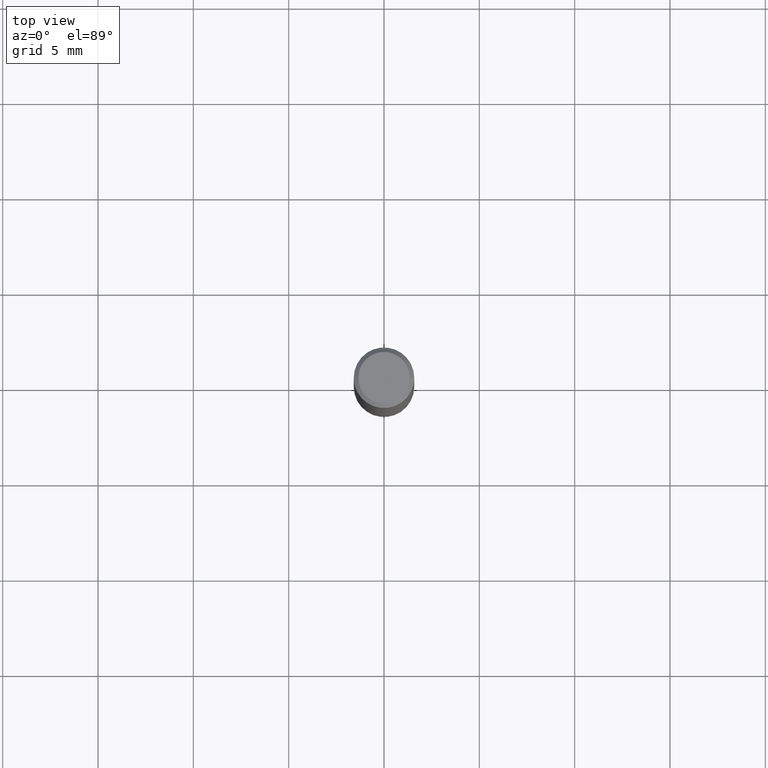
[diagram: clean part render]
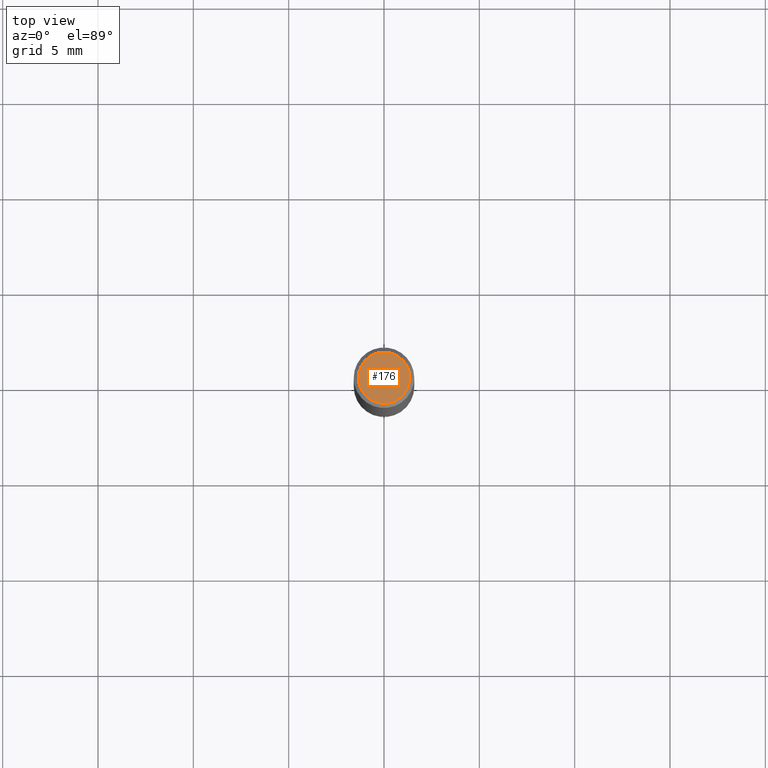
[diagram: same view with one face highlighted and labeled with its STEP entity id]
A machine part, top view. The second image highlights one B-rep face of the part: STEP entity #176.
In plain terms, the highlighted planar face has unit normal (0, -0, -1).
Its self-contained STEP definition (entity closure, byte-faithful):
#10 = ORIENTED_EDGE ( 'NONE', *, *, #518, .T. ) ;
#19 = VERTEX_POINT ( 'NONE', #86 ) ;
#37 = DIRECTION ( 'NONE',  ( -2.445468806185136597E-29, 3.491481338843145583E-15, 1.000000000000000000 ) ) ;
#47 = EDGE_CURVE ( 'NONE', #19, #323, #570, .T. ) ;
#86 = CARTESIAN_POINT ( 'NONE',  ( -0.05312499999999999861, 3.873362110279099094E-16, -5.787680772773044021E-18 ) ) ;
#135 = AXIS2_PLACEMENT_3D ( 'NONE', #579, #37, #494 ) ;
#172 = AXIS2_PLACEMENT_3D ( 'NONE', #543, #227, #505 ) ;
#176 = ADVANCED_FACE ( 'NONE', ( #549 ), #281, .F. ) ;
#227 = DIRECTION ( 'NONE',  ( 2.438088387897960049E-29, -3.491481338843145188E-15, -1.000000000000000000 ) ) ;
#275 = CARTESIAN_POINT ( 'NONE',  ( 0.05312499999999999861, -4.129888592719939842E-16, -5.787680772767651417E-18 ) ) ;
#281 = PLANE ( 'NONE',  #172 ) ;
#323 = VERTEX_POINT ( 'NONE', #275 ) ;
#327 = DIRECTION ( 'NONE',  ( 1.000000000000000000, -6.982962677686266711E-15, 4.875930095424100059E-29 ) ) ;
#343 = ORIENTED_EDGE ( 'NONE', *, *, #47, .T. ) ;
#381 = CARTESIAN_POINT ( 'NONE',  ( 1.415359278996747967E-46, -2.020757941330909984E-32, -5.787680772770392401E-18 ) ) ;
#395 = AXIS2_PLACEMENT_3D ( 'NONE', #381, #568, #327 ) ;
#402 = CIRCLE ( 'NONE', #135, 0.05312499999999999861 ) ;
#494 = DIRECTION ( 'NONE',  ( 1.000000000000000000, -6.982962677686266711E-15, 4.875930095424100059E-29 ) ) ;
#505 = DIRECTION ( 'NONE',  ( -1.000000000000000000, 6.982962677686265922E-15, -4.876176775795935793E-29 ) ) ;
#518 = EDGE_CURVE ( 'NONE', #323, #19, #402, .T. ) ;
#543 = CARTESIAN_POINT ( 'NONE',  ( 7.076796394983739835E-47, -1.010378970665454992E-32, -2.893840386385196200E-18 ) ) ;
#549 = FACE_OUTER_BOUND ( 'NONE', #558, .T. ) ;
#558 = EDGE_LOOP ( 'NONE', ( #343, #10 ) ) ;
#568 = DIRECTION ( 'NONE',  ( -2.445468806185136597E-29, 3.491481338843145583E-15, 1.000000000000000000 ) ) ;
#570 = CIRCLE ( 'NONE', #395, 0.05312499999999999861 ) ;
#579 = CARTESIAN_POINT ( 'NONE',  ( 1.415359278996747967E-46, -2.020757941330909984E-32, -5.787680772770392401E-18 ) ) ;